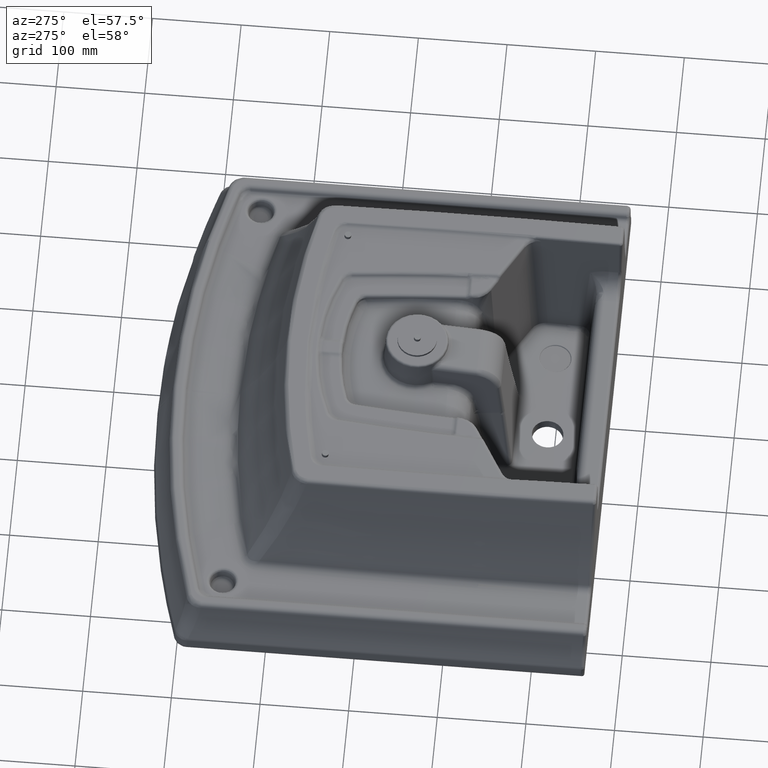
[diagram: clean part render]
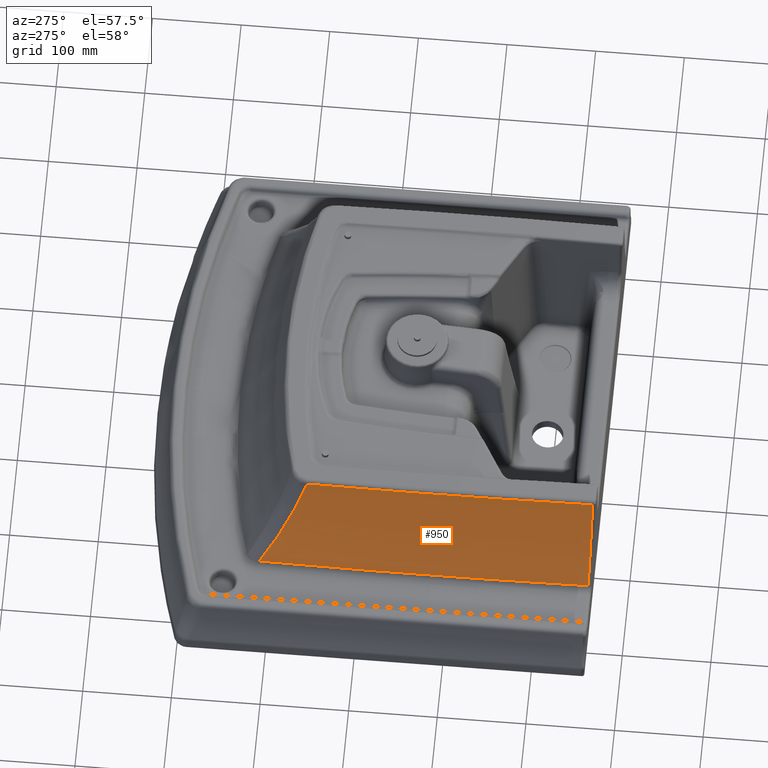
[diagram: same view with one face highlighted and labeled with its STEP entity id]
A machine part, auxiliary view. The second image highlights one B-rep face of the part: STEP entity #950.
In plain terms, the highlighted face is a SurfaceOfRevolution surface.
Its self-contained STEP definition (entity closure, byte-faithful):
#116=SURFACE_OF_REVOLUTION('',#6799,#118);
#118=AXIS1_PLACEMENT('',#13634,#7984);
#649=CIRCLE('',#7434,10036.65655111);
#650=CIRCLE('',#7436,10000.74047797);
#950=ADVANCED_FACE('',(#1484),#116,.T.);
#1484=FACE_OUTER_BOUND('',#1942,.T.);
#1942=EDGE_LOOP('',(#3065,#3066,#3067,#3068));
#3065=ORIENTED_EDGE('',*,*,#5831,.F.);
#3066=ORIENTED_EDGE('',*,*,#5685,.F.);
#3067=ORIENTED_EDGE('',*,*,#5832,.T.);
#3068=ORIENTED_EDGE('',*,*,#5787,.F.);
#4970=VERTEX_POINT('',#11321);
#4971=VERTEX_POINT('',#11347);
#5036=VERTEX_POINT('',#12806);
#5039=VERTEX_POINT('',#12935);
#5685=EDGE_CURVE('',#4970,#4971,#6705,.T.);
#5787=EDGE_CURVE('',#5036,#5039,#6771,.T.);
#5831=EDGE_CURVE('',#4971,#5036,#649,.T.);
#5832=EDGE_CURVE('',#4970,#5039,#650,.T.);
#6705=B_SPLINE_CURVE_WITH_KNOTS('',3,(#11348,#11349,#11350,#11351,#11352,
#11353),.UNSPECIFIED.,.F.,.F.,(4,2,4),(0.,0.5,1.),.UNSPECIFIED.);
#6771=B_SPLINE_CURVE_WITH_KNOTS('',3,(#12873,#12874,#12875,#12876,#12877,
#12878,#12879,#12880,#12881,#12882,#12883,#12884,#12885,#12886,#12887,#12888,
#12889,#12890,#12891,#12892,#12893,#12894,#12895,#12896,#12897,#12898,#12899,
#12900,#12901,#12902,#12903,#12904,#12905,#12906,#12907,#12908,#12909,#12910,
#12911,#12912,#12913,#12914,#12915,#12916,#12917,#12918,#12919,#12920,#12921,
#12922,#12923,#12924,#12925,#12926,#12927,#12928,#12929,#12930,#12931,#12932,
#12933,#12934),.UNSPECIFIED.,.F.,.F.,(4,2,2,2,1,1,2,2,2,2,1,1,2,2,2,2,2,
1,2,2,2,2,2,2,2,2,2,2,2,2,1,2,2,4),(0.,0.0624999999999991,0.0937499999999986,
0.109374999999998,0.117187499999998,0.121093749999998,0.123046874999998,
0.124999999999998,0.187499999999994,0.218749999999992,0.234374999999991,
0.242187499999991,0.246093749999991,0.24999999999999,0.374999999999993,
0.437499999999995,0.468749999999995,0.484374999999996,0.492187499999996,
0.499999999999996,0.624999999999997,0.687499999999998,0.718749999999998,
0.734374999999999,0.749999999999999,0.812499999999999,0.843749999999999,
0.875,0.9375,0.96875,0.9765625,0.98046875,0.984375,1.),.UNSPECIFIED.);
#6799=B_SPLINE_CURVE_WITH_KNOTS('',3,(#13630,#13631,#13632,#13633),
 .UNSPECIFIED.,.F.,.F.,(4,4),(0.,1.),.UNSPECIFIED.);
#7434=AXIS2_PLACEMENT_3D('',#13627,#7978,#7979);
#7436=AXIS2_PLACEMENT_3D('',#13629,#7982,#7983);
#7978=DIRECTION('',(0.,1.,1.04083408558608E-017));
#7979=DIRECTION('',(-0.999804175758331,0.,0.0197891418764106));
#7982=DIRECTION('',(0.,1.,1.04083408558608E-017));
#7983=DIRECTION('',(-0.999890588074105,0.,0.0147922912633601));
#7984=DIRECTION('',(0.,1.,1.04083408558608E-017));
#11321=CARTESIAN_POINT('',(-177.220218301932,-11.9690547502549,-210.470996751902));
#11347=CARTESIAN_POINT('',(-213.176150436573,101.021897184885,-208.478414884215));
#11348=CARTESIAN_POINT('',(-177.22021816432,-11.9690554861449,-210.470996764823));
#11349=CARTESIAN_POINT('',(-180.850081939289,7.48616855222117,-210.127752930069));
#11350=CARTESIAN_POINT('',(-185.815554505536,26.7287341318943,-209.788324992052));
#11351=CARTESIAN_POINT('',(-197.947679762285,64.4677670243213,-209.122804687611));
#11352=CARTESIAN_POINT('',(-205.104637540182,82.9512405318731,-208.796939133832));
#11353=CARTESIAN_POINT('',(-213.176151049662,101.021898563365,-208.478414859893));
#12806=CARTESIAN_POINT('',(-212.69064331874,101.021897184885,162.488565977039));
#12873=CARTESIAN_POINT('',(-212.690582734098,101.021770989615,162.488797463559));
#12874=CARTESIAN_POINT('',(-211.52590856934,98.3341581228782,160.718822257781));
#12875=CARTESIAN_POINT('',(-210.492619616817,95.8972189316226,159.168080447322));
#12876=CARTESIAN_POINT('',(-209.131919007766,92.6412458209964,157.139217261031));
#12877=CARTESIAN_POINT('',(-208.709881243818,91.622419433753,156.51256267779));
#12878=CARTESIAN_POINT('',(-208.123120580393,90.1962291502019,155.643866103884));
#12879=CARTESIAN_POINT('',(-207.935249944356,89.73783650091,155.366186713575));
#12880=CARTESIAN_POINT('',(-207.664897801776,89.076005740152,154.967147502234));
#12881=CARTESIAN_POINT('',(-207.532585241487,88.7515295504151,154.771998338124));
#12882=CARTESIAN_POINT('',(-207.383206064012,88.3842939421428,154.551901118698));
#12883=CARTESIAN_POINT('',(-207.320252019975,88.2293382055406,154.45919002972));
#12884=CARTESIAN_POINT('',(-207.278519158721,88.1265751704183,154.397741007851));
#12885=CARTESIAN_POINT('',(-207.268891503246,88.1028692947201,154.383564589245));
#12886=CARTESIAN_POINT('',(-206.221121607732,85.5207615731732,152.841294834263));
#12887=CARTESIAN_POINT('',(-205.269783613434,83.1268894166173,151.452457733212));
#12888=CARTESIAN_POINT('',(-203.936092794765,79.7110399085065,149.515805933403));
#12889=CARTESIAN_POINT('',(-203.507075260193,78.6015650766596,148.894709602995));
#12890=CARTESIAN_POINT('',(-202.886358889732,76.9821574461675,147.998242905952));
#12891=CARTESIAN_POINT('',(-202.581702824863,76.1836532513079,147.558805786305));
#12892=CARTESIAN_POINT('',(-202.236134835282,75.2718873221384,147.06121234559));
#12893=CARTESIAN_POINT('',(-202.090135360832,74.8854007368907,146.85115847459));
#12894=CARTESIAN_POINT('',(-201.993267888873,74.6286944541118,146.711830271629));
#12895=CARTESIAN_POINT('',(-201.956577488374,74.5313879340538,146.65906715219));
#12896=CARTESIAN_POINT('',(-199.993753785231,69.31833300551,143.837393664265));
#12897=CARTESIAN_POINT('',(-198.223301393178,64.3963217302896,141.320342049749));
#12898=CARTESIAN_POINT('',(-195.759354762531,57.2450496993511,137.832061570288));
#12899=CARTESIAN_POINT('',(-194.969929522652,54.8998387991382,136.71727936433));
#12900=CARTESIAN_POINT('',(-193.83220707615,51.4432721774846,135.112535188091));
#12901=CARTESIAN_POINT('',(-193.4606996373,50.3012882778807,134.588861363758));
#12902=CARTESIAN_POINT('',(-192.914839540679,48.6040190494876,133.819672086439));
#12903=CARTESIAN_POINT('',(-192.644759465689,47.7593106745797,133.439158597461));
#12904=CARTESIAN_POINT('',(-192.37891473524,46.9205631430283,133.064671098559));
#12905=CARTESIAN_POINT('',(-192.202621587161,46.3627305224758,132.816341378565));
#12906=CARTESIAN_POINT('',(-192.127662098819,46.1249618084678,132.710755629428));
#12907=CARTESIAN_POINT('',(-190.428836612457,40.7179175694425,130.317898595882));
#12908=CARTESIAN_POINT('',(-188.949420831702,35.7354211987861,128.234477623465));
#12909=CARTESIAN_POINT('',(-186.900878938943,28.4430039960709,125.335401340729));
#12910=CARTESIAN_POINT('',(-186.246423863062,26.0423800031837,124.406775925995));
#12911=CARTESIAN_POINT('',(-185.305957153967,22.4890967669968,123.067369693098));
#12912=CARTESIAN_POINT('',(-184.99933580488,21.312608791418,122.629822404659));
#12913=CARTESIAN_POINT('',(-184.54951836439,19.5600688383364,121.986524616271));
#12914=CARTESIAN_POINT('',(-184.401264880557,18.9779207633976,121.774262769343));
#12915=CARTESIAN_POINT('',(-184.108096959369,17.817734126186,121.35402195063));
#12916=CARTESIAN_POINT('',(-183.972644452267,17.2777358644793,121.159639772176));
#12917=CARTESIAN_POINT('',(-183.209027698007,14.2077271540193,120.062322635784));
#12918=CARTESIAN_POINT('',(-182.624994096642,11.7766109977174,119.218264965046));
#12919=CARTESIAN_POINT('',(-181.788072295911,8.16927193387307,118.000469860205));
#12920=CARTESIAN_POINT('',(-181.515618292919,6.97337989038024,117.602586996491));
#12921=CARTESIAN_POINT('',(-180.983537985293,4.59501563193407,116.822542812706));
#12922=CARTESIAN_POINT('',(-180.731542212252,3.44795488966945,116.451661703101));
#12923=CARTESIAN_POINT('',(-179.948678863701,-0.185117488396006,115.294359551356));
#12924=CARTESIAN_POINT('',(-179.463933989157,-2.52690698346394,114.570976818776));
#12925=CARTESIAN_POINT('',(-178.757233411774,-6.08173760526392,113.505303331204));
#12926=CARTESIAN_POINT('',(-178.52750131134,-7.26219341042889,113.156927499792));
#12927=CARTESIAN_POINT('',(-178.246950983002,-8.7352729069259,112.728951013053));
#12928=CARTESIAN_POINT('',(-178.16328168903,-9.17701505936685,112.601119338584));
#12929=CARTESIAN_POINT('',(-178.080355951203,-9.61848096586103,112.474127749947));
#12930=CARTESIAN_POINT('',(-178.025237341254,-9.91272977350135,112.389653173494));
#12931=CARTESIAN_POINT('',(-177.963327535526,-10.2443190922307,112.29467562964));
#12932=CARTESIAN_POINT('',(-177.741177727851,-11.4411253628333,111.95323722747));
#12933=CARTESIAN_POINT('',(-177.651659843364,-11.9368742654947,111.814466867102));
#12934=CARTESIAN_POINT('',(-177.645796513693,-11.9690565723274,111.805614190173));
#12935=CARTESIAN_POINT('',(-177.64579056144,-11.9690547502549,111.805611521839));
#13627=CARTESIAN_POINT('',(9822.00048712927,101.021897184885,-36.1282544775615));
#13629=CARTESIAN_POINT('',(9822.00048712927,-11.9690547502549,-36.1282544775615));
#13630=CARTESIAN_POINT('',(19821.2094843133,-11.9690554861449,-211.141212839562));
#13631=CARTESIAN_POINT('',(19828.4339345633,26.8281068229552,-211.267660082662));
#13632=CARTESIAN_POINT('',(19840.9758143533,64.8424828102153,-211.487176595062));
#13633=CARTESIAN_POINT('',(19857.1200581333,101.021898563365,-211.769744132662));
#13634=CARTESIAN_POINT('',(9822.00048712927,-17.0535991845949,-36.1282544775615));